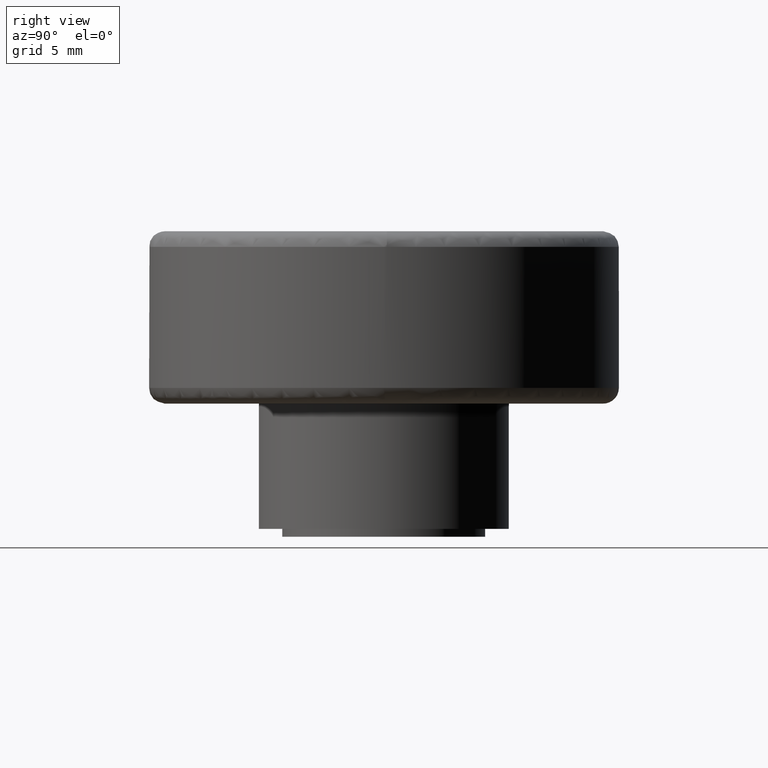
[diagram: clean part render]
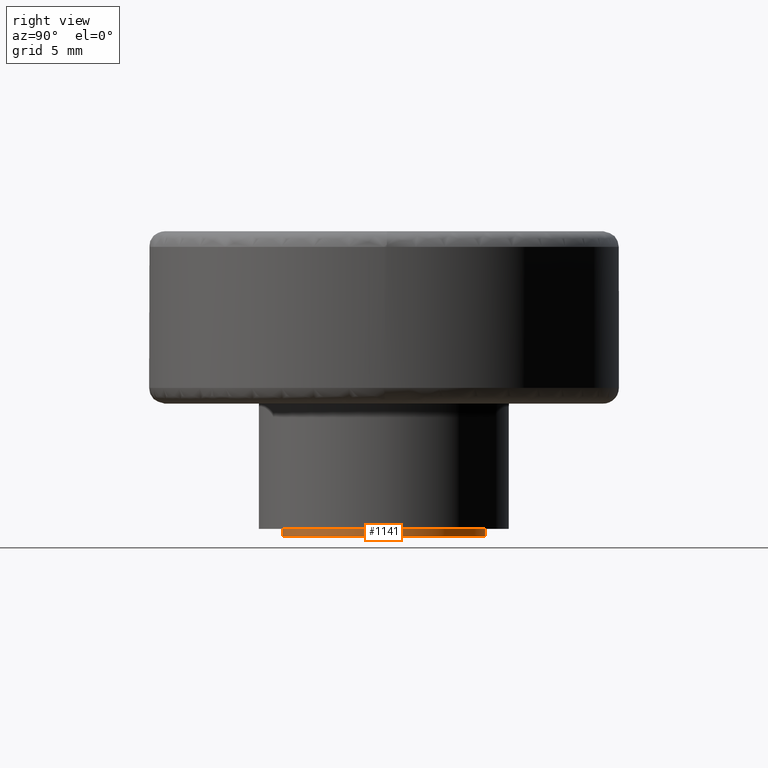
[diagram: same view with one face highlighted and labeled with its STEP entity id]
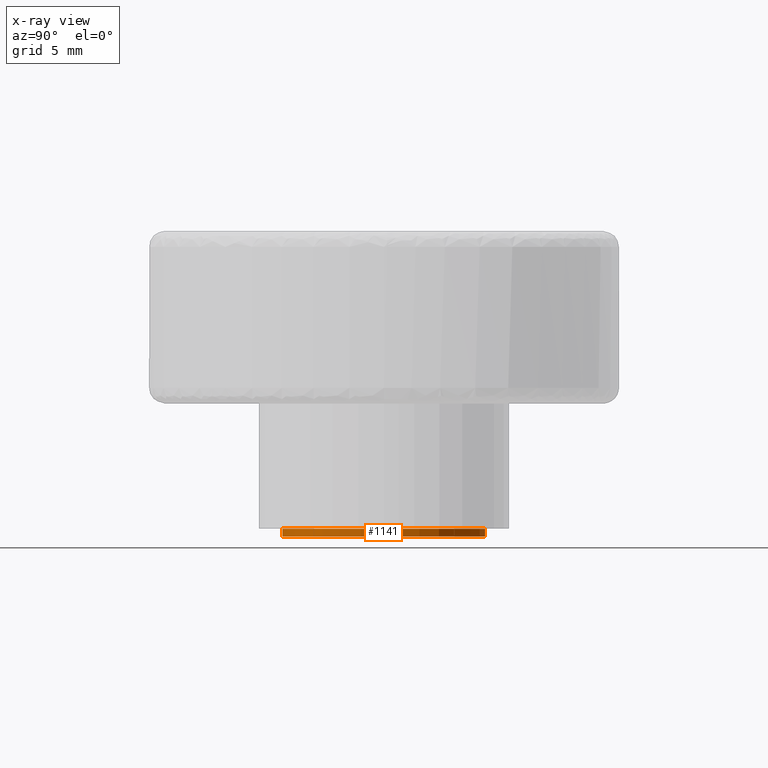
[diagram: x-ray of the same camera — body ghosted, the highlighted face saturated]
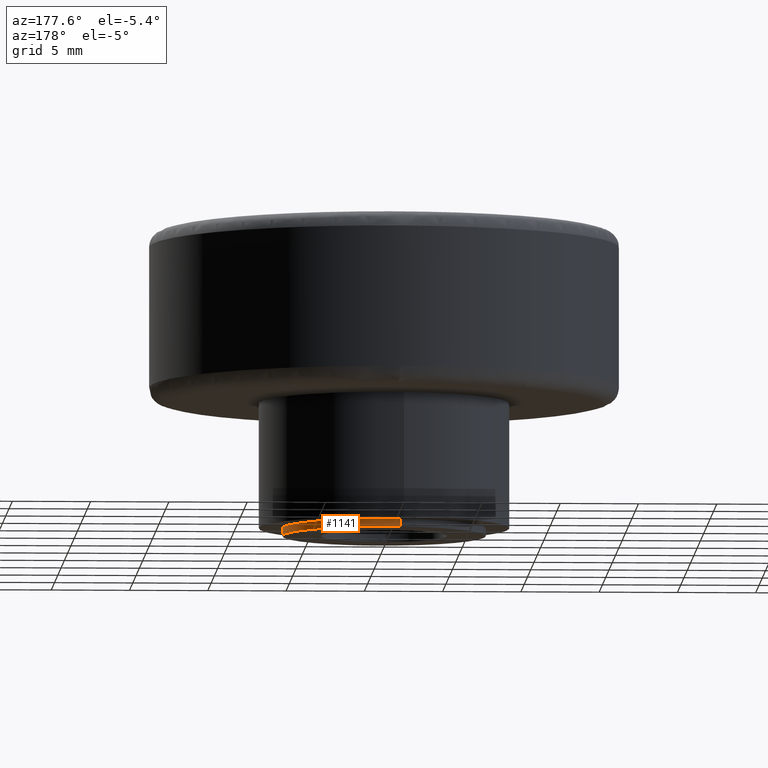
[diagram: same view with one face highlighted and labeled with its STEP entity id]
A machine part, right view. The second image highlights one B-rep face of the part: STEP entity #1141.
The next image is the same camera in x-ray: the body ghosted, the highlighted face saturated — about 0% of this face is hidden behind the body in this view.
A second angle (auxiliary view) of the same face is appended — the face is thin or edge-on in the first view.
In plain terms, the highlighted face is a freeform B-spline surface patch.
Its self-contained STEP definition (entity closure, byte-faithful):
#1039=CARTESIAN_POINT('',(-0.767222525268930,6.454561921363831,0.512500000000000));
#1040=CARTESIAN_POINT('',(-0.582495736146855,6.476519500415936,0.512500000000000));
#1041=CARTESIAN_POINT('',(-0.396815506976570,6.487876189742133,0.512500000000000));
#1042=CARTESIAN_POINT('',(6.091060682765563,6.884691696718703,0.512500000000000));
#1043=CARTESIAN_POINT('',(6.487876189742133,0.396815506976570,0.512500000000000));
#1044=CARTESIAN_POINT('',(6.884691696718703,-6.091060682765563,0.512500000000000));
#1045=CARTESIAN_POINT('',(0.396815506976570,-6.487876189742133,0.512500000000000));
#1046=CARTESIAN_POINT('',(-0.767222525268930,6.454561921363831,-0.012812500000000));
#1047=CARTESIAN_POINT('',(-0.582495736146855,6.476519500415936,-0.012812500000000));
#1048=CARTESIAN_POINT('',(-0.396815506976570,6.487876189742133,-0.012812500000000));
#1049=CARTESIAN_POINT('',(6.091060682765563,6.884691696718703,-0.012812500000000));
#1050=CARTESIAN_POINT('',(6.487876189742133,0.396815506976570,-0.012812500000000));
#1051=CARTESIAN_POINT('',(6.884691696718703,-6.091060682765563,-0.012812500000000));
#1052=CARTESIAN_POINT('',(0.396815506976570,-6.487876189742133,-0.012812500000000));
#1060=(BOUNDED_SURFACE()B_SPLINE_SURFACE(2,1,((#1039,#1046),(#1040,#1047),(#1041,#1048),(#1042,#1049),(#1043,#1050),(#1044,#1051),(#1045,#1052)),.UNSPECIFIED.,.F.,.F.,.U.)B_SPLINE_SURFACE_WITH_KNOTS((3,2,2,3),(2,2),(0.0,0.430782104868019,11.200334726568490,21.969887348268959),(0.0,1.0),.UNSPECIFIED.)GEOMETRIC_REPRESENTATION_ITEM()RATIONAL_B_SPLINE_SURFACE(((0.977505800795127,0.977505800795127),(0.988284271247462,0.988284271247462),(1.0,1.0),(0.707106781186548,0.707106781186548),(1.0,1.0),(0.707106781186548,0.707106781186548),(1.0,1.0)))REPRESENTATION_ITEM('')SURFACE());
#1061=CARTESIAN_POINT('',(-0.767220743882480,6.454562133108115,0.499999999999924));
#1062=VERTEX_POINT('',#1061);
#1063=CARTESIAN_POINT('',(6.500000000000000,0.0,0.500000000000000));
#1064=VERTEX_POINT('',#1063);
#1065=CARTESIAN_POINT('',(-0.767220743882480,6.454562133108115,0.499999999999924));
#1066=CARTESIAN_POINT('',(-0.384955877627932,6.500000000000000,0.500000000000000));
#1067=CARTESIAN_POINT('',(0.0,6.500000000000000,0.500000000000000));
#1068=CARTESIAN_POINT('',(6.500000000000000,6.500000000000000,0.500000000000000));
#1069=CARTESIAN_POINT('',(6.500000000000000,0.0,0.500000000000000));
#1077=(BOUNDED_CURVE()B_SPLINE_CURVE(2,(#1065,#1066,#1067,#1068,#1069),.UNSPECIFIED.,.F.,.U.)B_SPLINE_CURVE_WITH_KNOTS((3,2,3),(0.229562520158640,0.250000000000000,0.500000000000000),.UNSPECIFIED.)CURVE()GEOMETRIC_REPRESENTATION_ITEM()RATIONAL_B_SPLINE_CURVE((0.956026845610087,0.976056002979316,1.0,0.707106781186547,1.0))REPRESENTATION_ITEM(''));
#1078=EDGE_CURVE('',#1062,#1064,#1077,.T.);
#1079=ORIENTED_EDGE('',*,*,#1078,.T.);
#1080=CARTESIAN_POINT('',(0.396807448403197,-6.487876682615549,0.500000000000905));
#1081=VERTEX_POINT('',#1080);
#1082=CARTESIAN_POINT('',(6.500000000000000,0.0,0.500000000000000));
#1083=CARTESIAN_POINT('',(6.500000000000001,-6.114597043998314,0.500000000000000));
#1084=CARTESIAN_POINT('',(0.396807448403197,-6.487876682615549,0.500000000000905));
#1092=(BOUNDED_CURVE()B_SPLINE_CURVE(2,(#1082,#1083,#1084),.UNSPECIFIED.,.F.,.U.)B_SPLINE_CURVE_WITH_KNOTS((3,3),(0.500000000000000,0.739333176561901),.UNSPECIFIED.)CURVE()GEOMETRIC_REPRESENTATION_ITEM()RATIONAL_B_SPLINE_CURVE((1.0,0.719603742191746,0.976072501002045))REPRESENTATION_ITEM(''));
#1093=EDGE_CURVE('',#1064,#1081,#1092,.T.);
#1094=ORIENTED_EDGE('',*,*,#1093,.T.);
#1095=CARTESIAN_POINT('',(0.396807545595318,-6.487876676671266,-2.602085E-017));
#1096=VERTEX_POINT('',#1095);
#1097=CARTESIAN_POINT('',(0.396807448403197,-6.487876682615549,0.500000000000905));
#1098=CARTESIAN_POINT('',(0.396807545595318,-6.487876676671266,-2.602085E-017));
#1099=QUASI_UNIFORM_CURVE('',1,(#1097,#1098),.UNSPECIFIED.,.F.,.U.);
#1100=EDGE_CURVE('',#1081,#1096,#1099,.T.);
#1101=ORIENTED_EDGE('',*,*,#1100,.T.);
#1102=CARTESIAN_POINT('',(6.500000000000000,0.0,0.0));
#1103=VERTEX_POINT('',#1102);
#1104=CARTESIAN_POINT('',(6.500000000000000,0.0,0.0));
#1105=CARTESIAN_POINT('',(6.500000000000001,-6.114596952226979,0.0));
#1106=CARTESIAN_POINT('',(0.396807545595318,-6.487876676671266,-2.602085E-017));
#1114=(BOUNDED_CURVE()B_SPLINE_CURVE(2,(#1104,#1105,#1106),.UNSPECIFIED.,.F.,.U.)B_SPLINE_CURVE_WITH_KNOTS((3,3),(0.500000000000000,0.739333173977050),.UNSPECIFIED.)CURVE()GEOMETRIC_REPRESENTATION_ITEM()RATIONAL_B_SPLINE_CURVE((1.0,0.719603745220087,0.976072495462207))REPRESENTATION_ITEM(''));
#1115=EDGE_CURVE('',#1103,#1096,#1114,.T.);
#1116=ORIENTED_EDGE('',*,*,#1115,.F.);
#1117=CARTESIAN_POINT('',(-0.767220765313498,6.454562130560726,-8.429553E-017));
#1118=VERTEX_POINT('',#1117);
#1119=CARTESIAN_POINT('',(-0.767220765313498,6.454562130560726,-8.429553E-017));
#1120=CARTESIAN_POINT('',(-0.384955888456724,6.500000000000001,0.0));
#1121=CARTESIAN_POINT('',(0.0,6.500000000000000,0.0));
#1122=CARTESIAN_POINT('',(6.500000000000000,6.500000000000000,0.0));
#1123=CARTESIAN_POINT('',(6.500000000000000,0.0,0.0));
#1131=(BOUNDED_CURVE()B_SPLINE_CURVE(2,(#1119,#1120,#1121,#1122,#1123),.UNSPECIFIED.,.F.,.U.)B_SPLINE_CURVE_WITH_KNOTS((3,2,3),(0.229562519597500,0.250000000000000,0.500000000000000),.UNSPECIFIED.)CURVE()GEOMETRIC_REPRESENTATION_ITEM()RATIONAL_B_SPLINE_CURVE((0.956026844510229,0.976056002321900,1.0,0.707106781186547,1.0))REPRESENTATION_ITEM(''));
#1132=EDGE_CURVE('',#1118,#1103,#1131,.T.);
#1133=ORIENTED_EDGE('',*,*,#1132,.F.);
#1134=CARTESIAN_POINT('',(-0.767220743882480,6.454562133108115,0.499999999999924));
#1135=CARTESIAN_POINT('',(-0.767220765313498,6.454562130560726,-8.429553E-017));
#1136=QUASI_UNIFORM_CURVE('',1,(#1134,#1135),.UNSPECIFIED.,.F.,.U.);
#1137=EDGE_CURVE('',#1062,#1118,#1136,.T.);
#1138=ORIENTED_EDGE('',*,*,#1137,.F.);
#1139=EDGE_LOOP('',(#1079,#1094,#1101,#1116,#1133,#1138));
#1140=FACE_OUTER_BOUND('',#1139,.T.);
#1141=ADVANCED_FACE('',(#1140),#1060,.T.);